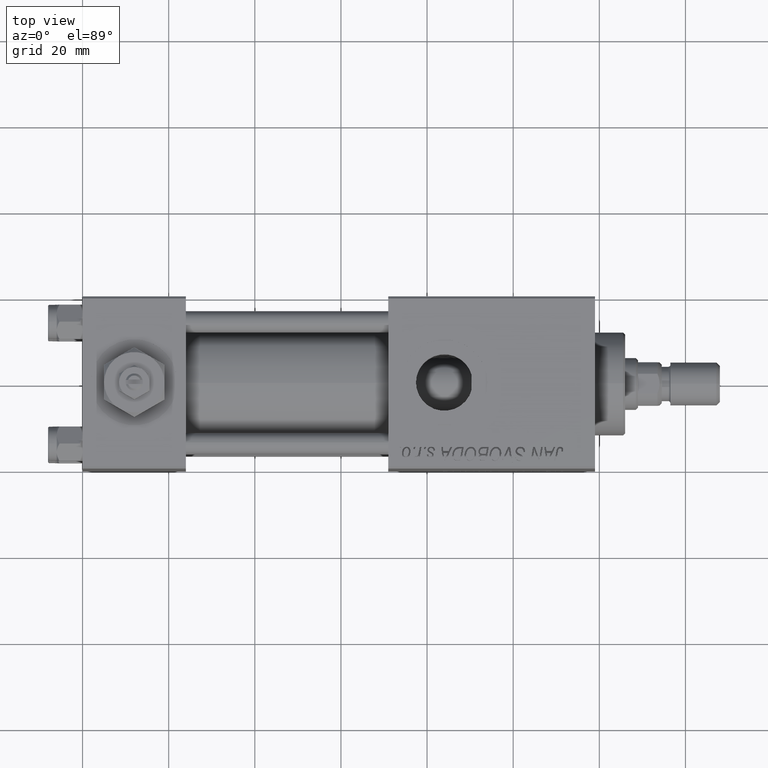
[diagram: clean part render]
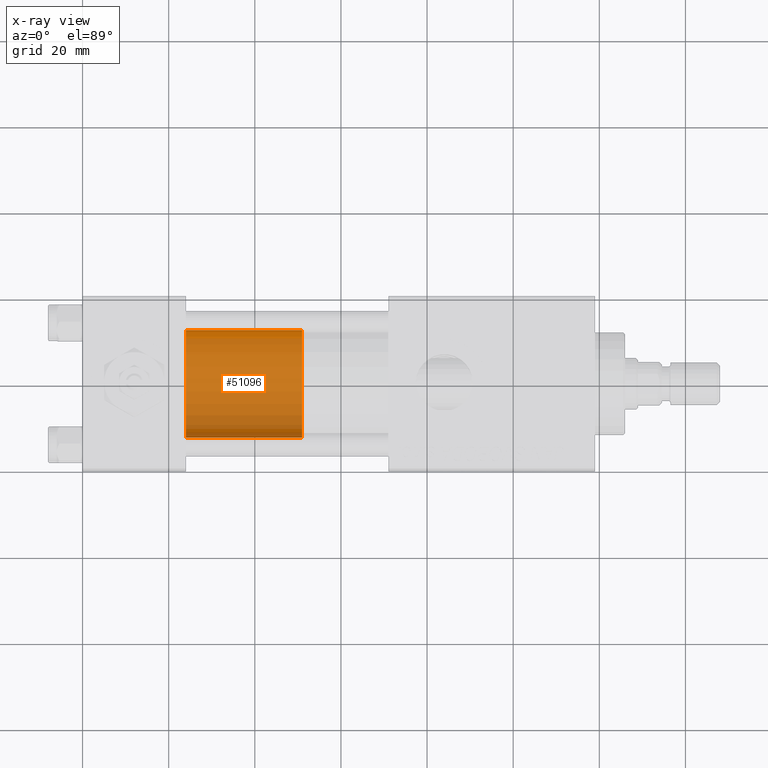
[diagram: x-ray — body ghosted, one internal face saturated and labeled with its STEP entity id]
A machine part, top view, then the same camera in x-ray: the body is ghosted and one INTERNAL B-rep face — a face not visible from any outside direction — is saturated and labeled: STEP entity #51096.
In plain terms, the highlighted cylindrical surface (partial cylindrical patch) has radius 12.5 mm, axis along (-1, 0, 0).
Its self-contained STEP definition (entity closure, byte-faithful):
#1747 = LINE ( 'NONE', #18032, #20304 ) ;
#5214 = DIRECTION ( 'NONE',  ( 1.000000000000000000, 0.000000000000000000, 0.000000000000000000 ) ) ;
#5329 = CARTESIAN_POINT ( 'NONE',  ( -12.50000000000000000, 0.000000000000000000, 0.000000000000000000 ) ) ;
#5642 = VERTEX_POINT ( 'NONE', #43006 ) ;
#10256 = VERTEX_POINT ( 'NONE', #5329 ) ;
#10814 = EDGE_CURVE ( 'NONE', #5642, #10256, #15142, .T. ) ;
#12692 = AXIS2_PLACEMENT_3D ( 'NONE', #44088, #48082, #28115 ) ;
#13489 = CARTESIAN_POINT ( 'NONE',  ( 0.000000000000000000, 0.000000000000000000, 0.000000000000000000 ) ) ;
#15142 = CIRCLE ( 'NONE', #27967, 12.50000000000000000 ) ;
#15482 = ORIENTED_EDGE ( 'NONE', *, *, #52669, .F. ) ;
#16843 = EDGE_CURVE ( 'NONE', #24876, #10256, #26939, .T. ) ;
#17000 = CIRCLE ( 'NONE', #23809, 12.50000000000000000 ) ;
#18029 = DIRECTION ( 'NONE',  ( 0.000000000000000000, 0.000000000000000000, 1.000000000000000000 ) ) ;
#18032 = CARTESIAN_POINT ( 'NONE',  ( 12.50000000000000000, 1.530808498934191521E-15, 27.00000000000000000 ) ) ;
#18553 = DIRECTION ( 'NONE',  ( -0.000000000000000000, -0.000000000000000000, -1.000000000000000000 ) ) ;
#19607 = ORIENTED_EDGE ( 'NONE', *, *, #50299, .T. ) ;
#19711 = DIRECTION ( 'NONE',  ( 1.000000000000000000, 0.000000000000000000, 0.000000000000000000 ) ) ;
#19967 = CARTESIAN_POINT ( 'NONE',  ( 0.000000000000000000, 0.000000000000000000, 27.00000000000000000 ) ) ;
#20304 = VECTOR ( 'NONE', #18553, 1000.000000000000000 ) ;
#23809 = AXIS2_PLACEMENT_3D ( 'NONE', #19967, #36249, #19711 ) ;
#24876 = VERTEX_POINT ( 'NONE', #39243 ) ;
#26939 = LINE ( 'NONE', #27735, #43356 ) ;
#27735 = CARTESIAN_POINT ( 'NONE',  ( -12.50000000000000000, 0.000000000000000000, 27.00000000000000000 ) ) ;
#27967 = AXIS2_PLACEMENT_3D ( 'NONE', #13489, #18029, #5214 ) ;
#28048 = CARTESIAN_POINT ( 'NONE',  ( 12.50000000000000000, 1.530808498934191521E-15, 27.00000000000000000 ) ) ;
#28115 = DIRECTION ( 'NONE',  ( -1.000000000000000000, 0.000000000000000000, 0.000000000000000000 ) ) ;
#31842 = FACE_OUTER_BOUND ( 'NONE', #48696, .T. ) ;
#32633 = CYLINDRICAL_SURFACE ( 'NONE', #12692, 12.50000000000000000 ) ;
#36249 = DIRECTION ( 'NONE',  ( 0.000000000000000000, 0.000000000000000000, 1.000000000000000000 ) ) ;
#39243 = CARTESIAN_POINT ( 'NONE',  ( -12.50000000000000000, 0.000000000000000000, 27.00000000000000000 ) ) ;
#39935 = ORIENTED_EDGE ( 'NONE', *, *, #16843, .F. ) ;
#42962 = ORIENTED_EDGE ( 'NONE', *, *, #10814, .T. ) ;
#43006 = CARTESIAN_POINT ( 'NONE',  ( 12.50000000000000000, 1.530808498934191521E-15, 0.000000000000000000 ) ) ;
#43356 = VECTOR ( 'NONE', #43973, 1000.000000000000000 ) ;
#43735 = VERTEX_POINT ( 'NONE', #28048 ) ;
#43973 = DIRECTION ( 'NONE',  ( -0.000000000000000000, -0.000000000000000000, -1.000000000000000000 ) ) ;
#44088 = CARTESIAN_POINT ( 'NONE',  ( 0.000000000000000000, 0.000000000000000000, 27.00000000000000000 ) ) ;
#48082 = DIRECTION ( 'NONE',  ( -0.000000000000000000, -0.000000000000000000, -1.000000000000000000 ) ) ;
#48696 = EDGE_LOOP ( 'NONE', ( #15482, #19607, #42962, #39935 ) ) ;
#50299 = EDGE_CURVE ( 'NONE', #43735, #5642, #1747, .T. ) ;
#51096 = ADVANCED_FACE ( 'NONE', ( #31842 ), #32633, .T. ) ;
#52669 = EDGE_CURVE ( 'NONE', #43735, #24876, #17000, .T. ) ;